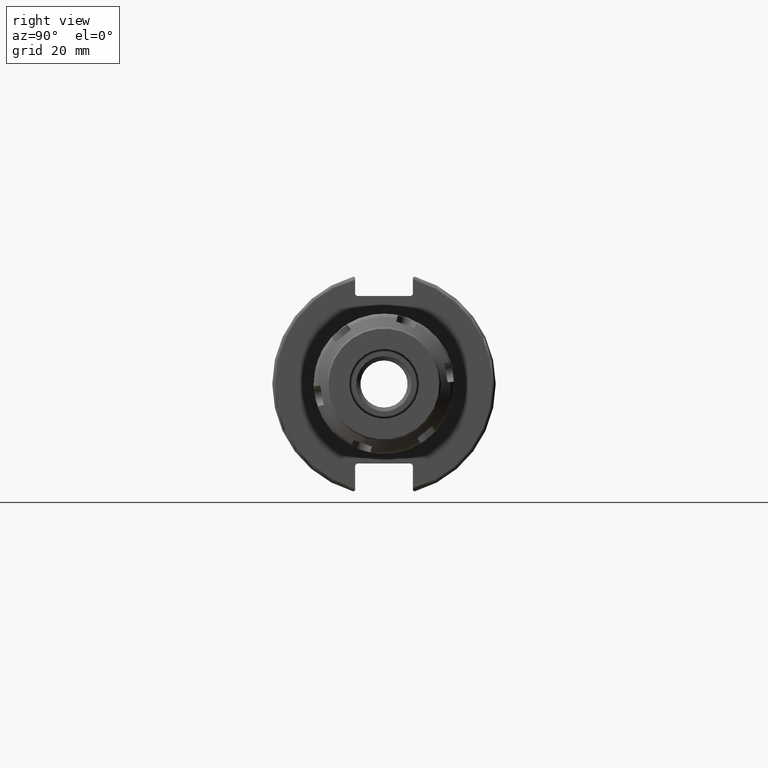
[diagram: clean part render]
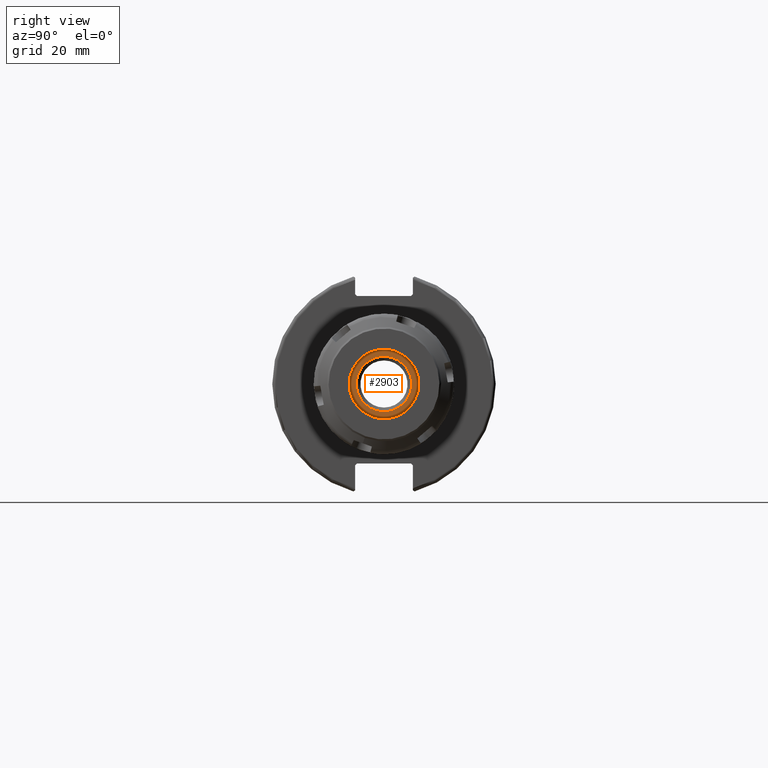
[diagram: same view with one face highlighted and labeled with its STEP entity id]
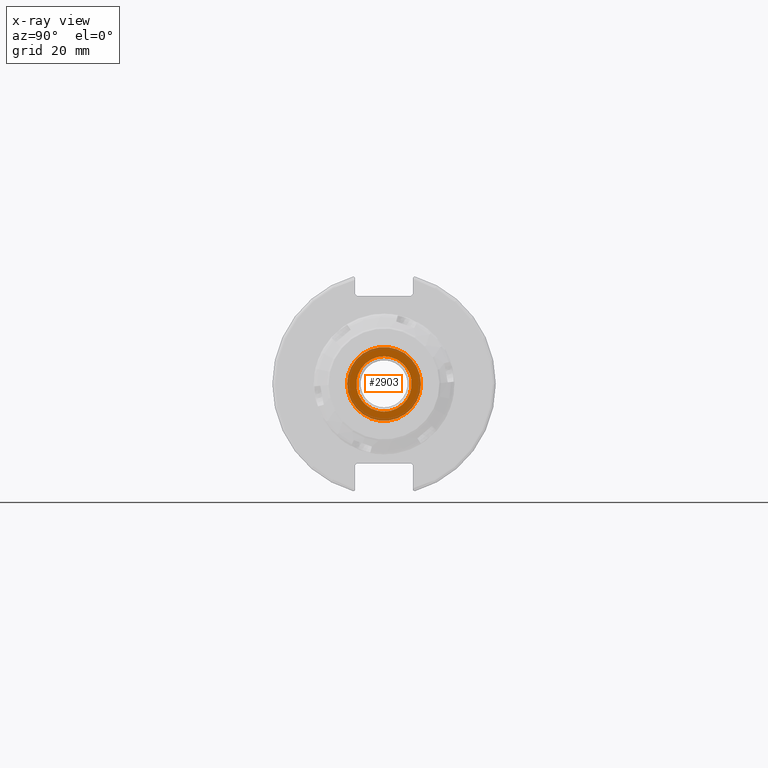
[diagram: x-ray of the same camera — body ghosted, the highlighted face saturated]
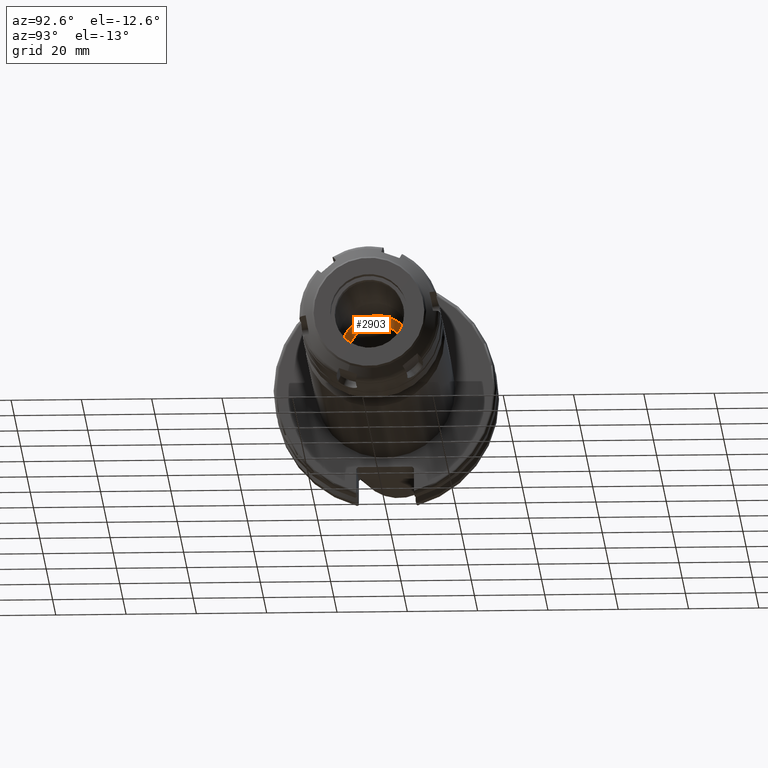
[diagram: same view with one face highlighted and labeled with its STEP entity id]
A machine part, right view. The second image highlights one B-rep face of the part: STEP entity #2903.
The next image is the same camera in x-ray: the body ghosted, the highlighted face saturated — about 25% of this face is hidden behind the body in this view.
A second angle (auxiliary view) of the same face is appended — the face is thin or edge-on in the first view.
In plain terms, the highlighted planar face has unit normal (1, 0, 0).
Its self-contained STEP definition (entity closure, byte-faithful):
#313=PLANE('',#3172);
#373=FACE_BOUND('',#651,.T.);
#492=FACE_OUTER_BOUND('',#650,.T.);
#650=EDGE_LOOP('',(#2053));
#651=EDGE_LOOP('',(#2054));
#1197=CIRCLE('',#3160,7.874);
#1203=CIRCLE('',#3171,10.5);
#1330=VERTEX_POINT('',#4401);
#1340=VERTEX_POINT('',#4498);
#1606=EDGE_CURVE('',#1330,#1330,#1197,.T.);
#1621=EDGE_CURVE('',#1340,#1340,#1203,.T.);
#2053=ORIENTED_EDGE('',*,*,#1621,.T.);
#2054=ORIENTED_EDGE('',*,*,#1606,.T.);
#2903=ADVANCED_FACE('',(#492,#373),#313,.T.);
#3160=AXIS2_PLACEMENT_3D('',#4402,#3517,#3518);
#3171=AXIS2_PLACEMENT_3D('',#4500,#3544,#3545);
#3172=AXIS2_PLACEMENT_3D('',#4501,#3546,#3547);
#3517=DIRECTION('center_axis',(-1.,0.,0.));
#3518=DIRECTION('ref_axis',(0.,0.,-1.));
#3544=DIRECTION('center_axis',(1.,0.,0.));
#3545=DIRECTION('ref_axis',(0.,0.,-1.));
#3546=DIRECTION('center_axis',(1.,0.,0.));
#3547=DIRECTION('ref_axis',(0.,0.,-1.));
#4401=CARTESIAN_POINT('',(68.,-9.64286889648626E-16,7.874));
#4402=CARTESIAN_POINT('Origin',(68.,0.,0.));
#4498=CARTESIAN_POINT('',(68.,-10.5,-1.28587913910472E-15));
#4500=CARTESIAN_POINT('Origin',(68.,0.,0.));
#4501=CARTESIAN_POINT('Origin',(68.,-4.34295833654001E-15,0.));